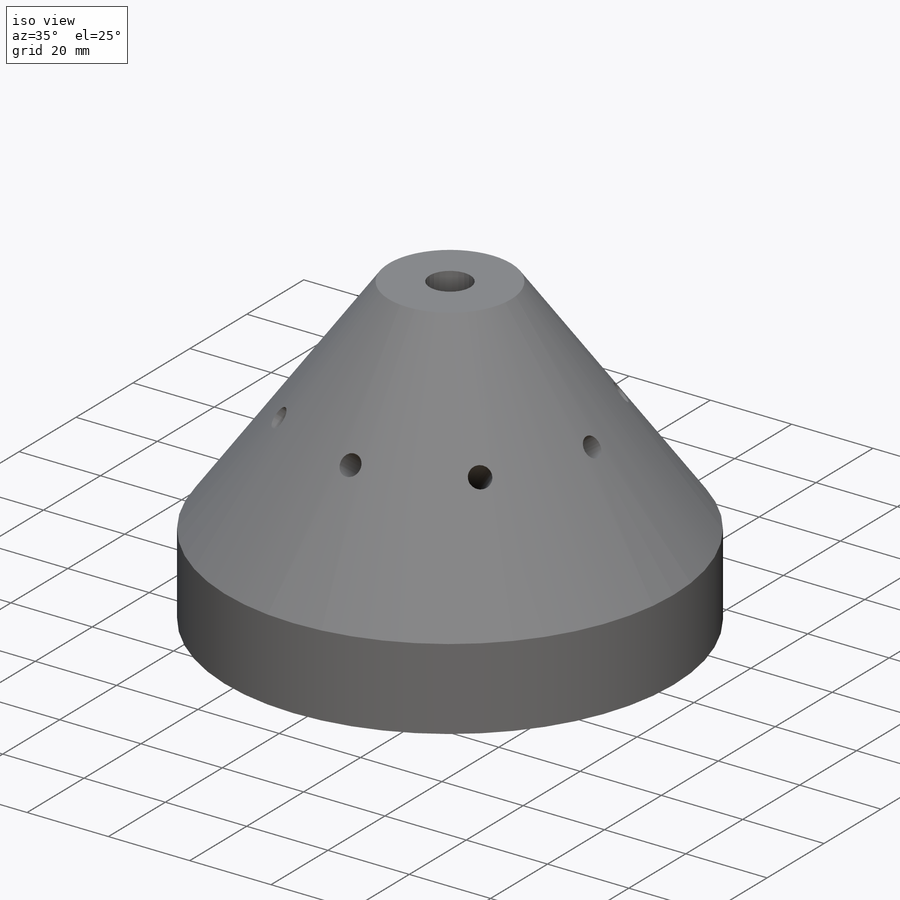
[diagram: iso view]
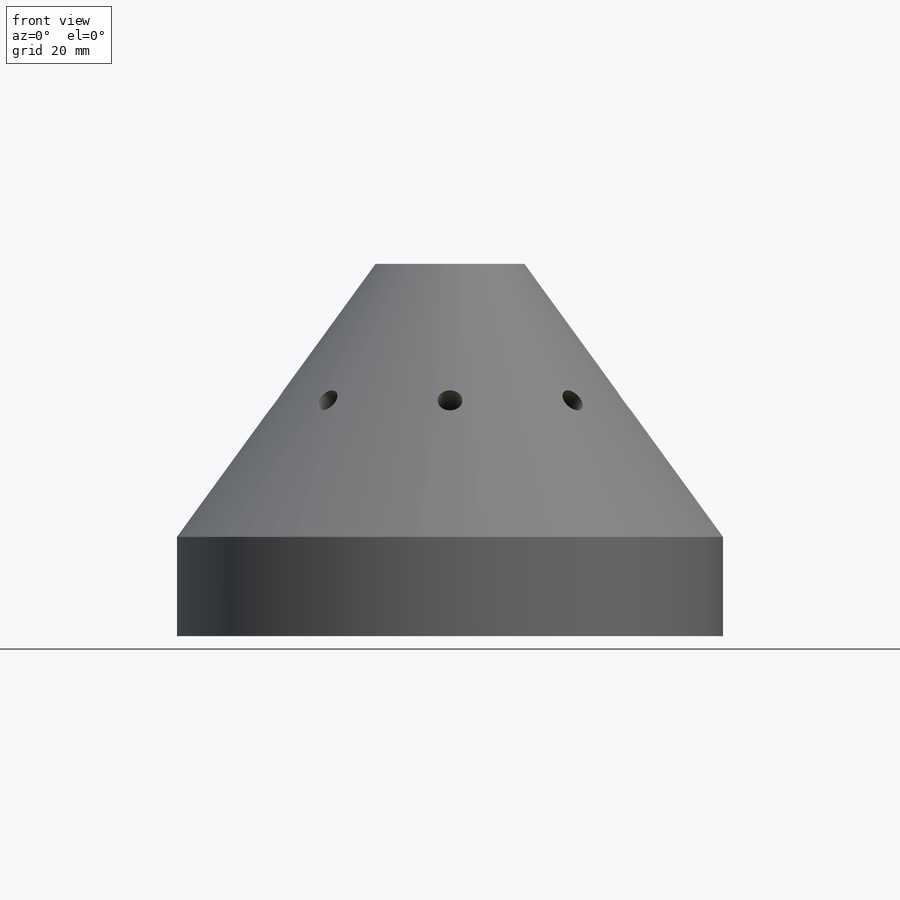
[diagram: front view]
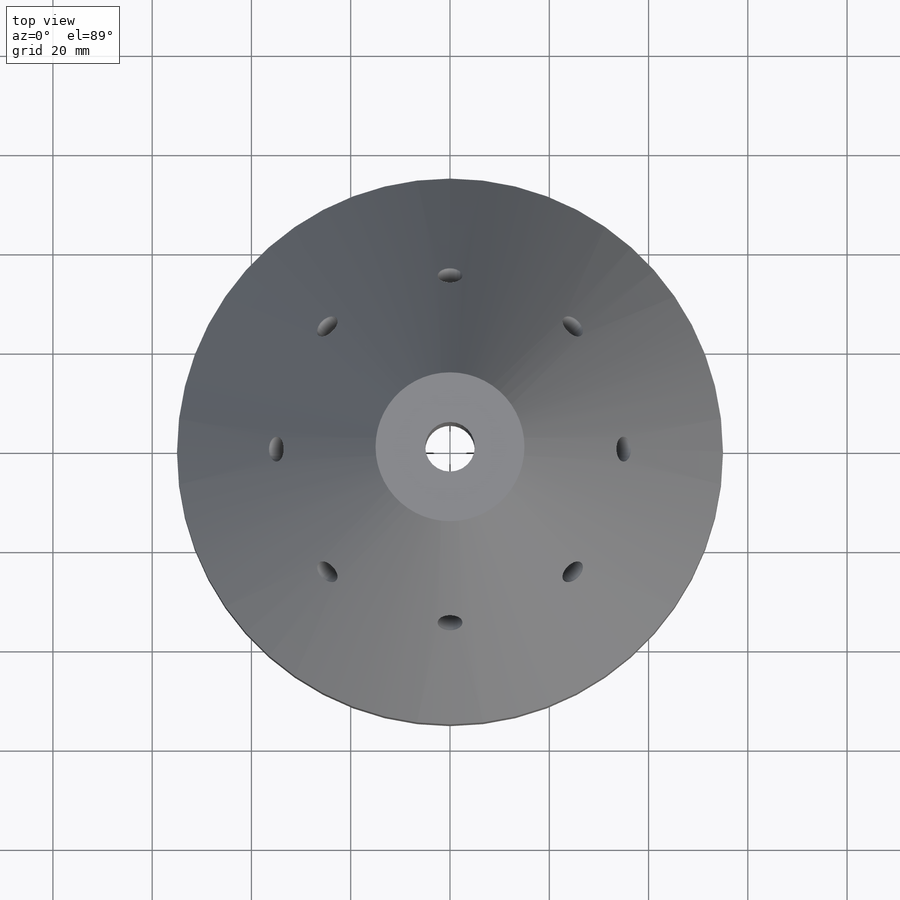
[diagram: top view]
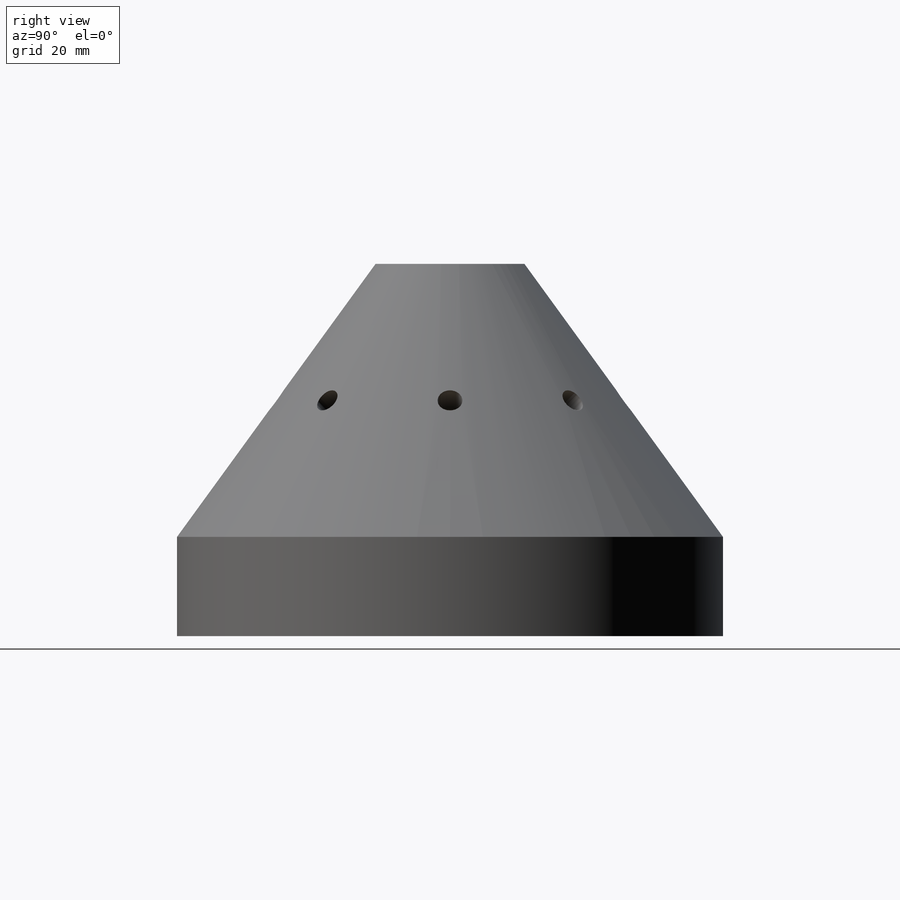
[diagram: right view]
SOLIDWORKS PART (.sldprt)
format: sldprt  version: not decoded by parser v0  size: 265,216 bytes
history: native  units: mm
features: plane x3, sketch x3, material x1, revolve x1, cut_revolve x1, pattern_circular x1 + 2 further entries (+8 scaffold rows collapsed)
feature tree (20):
  scaffold x8  (default folders/planes/origin — collapsed)
  material  "Allgemein"
  plane  "Vorderansicht"
  plane  "Draufsicht"
  plane  "Seitenansicht"
  "Y-Achse"
  "Z-Achse"
  sketch  "Skizze1"  dims[D1=10.0mm D2=110.0mm D3=30.0mm D4=70.0mm D5=5.0mm D6=20.0mm D7=75.0mm D8=15.0mm D9=27.5mm D10=~34.003676mm D11=~46.226939mm D12=~35.276738mm]
  sketch  "Skizze2"
  revolve  "Rotation1"  Angle=360deg
  sketch  "Skizze3"  dims[D1=~43.277406mm D2=~2.519142mm]
  cut_revolve  "Schnitt-Rotation1"  Angle=360deg
  pattern_circular  "Kreismuster1"  Count=8 Angle=360deg
decode coverage: 5 of 6 modeling features carry decoded parameters; 2 rows unclassified (native names shown)
note: ~ marks probable driven/reference dimensions
note: suppression state not decoded; provenance and decode notes live in map.json
